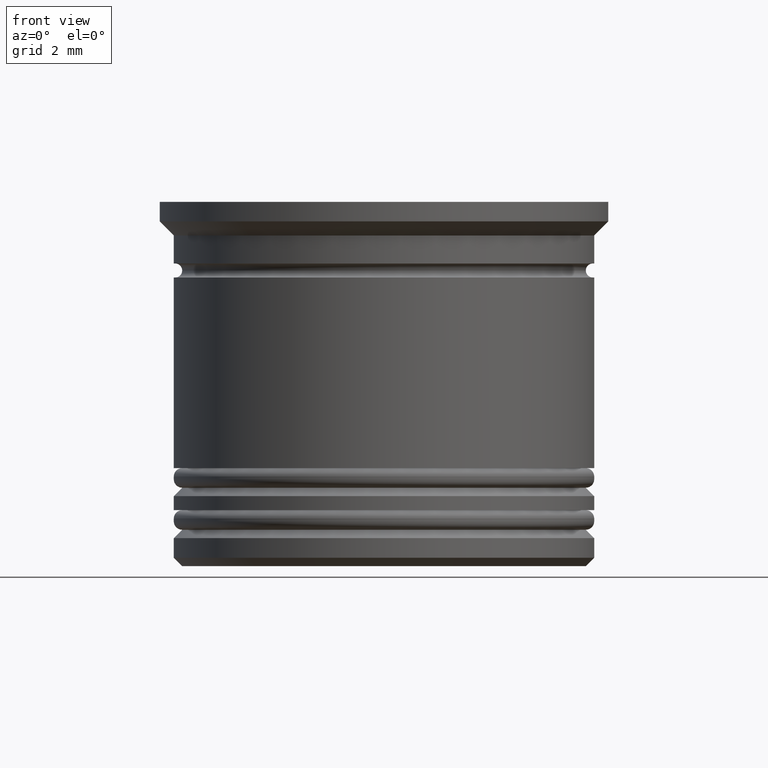
[diagram: clean part render]
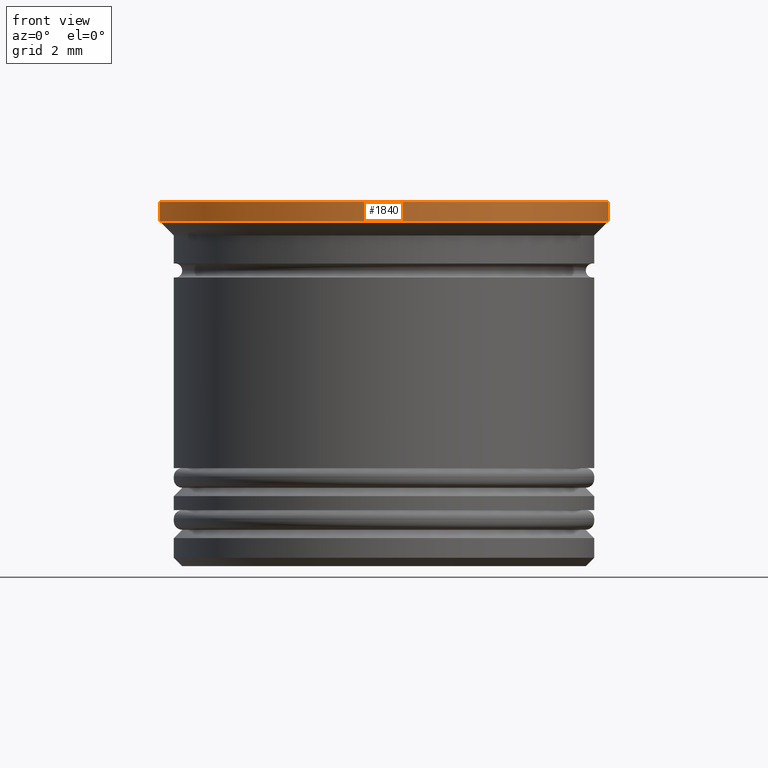
[diagram: same view with one face highlighted and labeled with its STEP entity id]
A machine part, front view. The second image highlights one B-rep face of the part: STEP entity #1840.
In plain terms, the highlighted cylindrical surface (partial cylindrical patch) has radius 8 mm, axis along (-0, -0, 1).
Its self-contained STEP definition (entity closure, byte-faithful):
#2 = DIRECTION ( 'NONE',  ( -0.000000000000000000, -0.000000000000000000, 1.000000000000000000 ) ) ;
#10 = VERTEX_POINT ( 'NONE', #871 ) ;
#71 = ORIENTED_EDGE ( 'NONE', *, *, #390, .F. ) ;
#114 = VECTOR ( 'NONE', #981, 1000.000000000000000 ) ;
#127 = FACE_OUTER_BOUND ( 'NONE', #615, .T. ) ;
#156 = CARTESIAN_POINT ( 'NONE',  ( 0.000000000000000000, 0.000000000000000000, -0.7000000000000005107 ) ) ;
#238 = CARTESIAN_POINT ( 'NONE',  ( 8.000000000000000000, 0.000000000000000000, 0.000000000000000000 ) ) ;
#250 = AXIS2_PLACEMENT_3D ( 'NONE', #601, #2, #1548 ) ;
#341 = CARTESIAN_POINT ( 'NONE',  ( -8.000000000000000000, 9.797174393178825657E-16, -0.7000000000000005107 ) ) ;
#390 = EDGE_CURVE ( 'NONE', #1803, #794, #1578, .T. ) ;
#528 = DIRECTION ( 'NONE',  ( -0.000000000000000000, -0.000000000000000000, 1.000000000000000000 ) ) ;
#592 = CARTESIAN_POINT ( 'NONE',  ( -8.000000000000000000, 9.797174393178825657E-16, 0.000000000000000000 ) ) ;
#594 = DIRECTION ( 'NONE',  ( -1.000000000000000000, 0.000000000000000000, 0.000000000000000000 ) ) ;
#601 = CARTESIAN_POINT ( 'NONE',  ( 0.000000000000000000, 0.000000000000000000, 0.000000000000000000 ) ) ;
#612 = DIRECTION ( 'NONE',  ( -0.000000000000000000, -0.000000000000000000, 1.000000000000000000 ) ) ;
#615 = EDGE_LOOP ( 'NONE', ( #1118, #1785, #1437, #71 ) ) ;
#700 = EDGE_CURVE ( 'NONE', #758, #1803, #825, .T. ) ;
#707 = AXIS2_PLACEMENT_3D ( 'NONE', #156, #612, #594 ) ;
#756 = CYLINDRICAL_SURFACE ( 'NONE', #250, 8.000000000000000000 ) ;
#758 = VERTEX_POINT ( 'NONE', #341 ) ;
#790 = CARTESIAN_POINT ( 'NONE',  ( 0.000000000000000000, 0.000000000000000000, 0.000000000000000000 ) ) ;
#794 = VERTEX_POINT ( 'NONE', #238 ) ;
#825 = LINE ( 'NONE', #1438, #114 ) ;
#831 = CARTESIAN_POINT ( 'NONE',  ( 8.000000000000000000, 0.000000000000000000, 0.000000000000000000 ) ) ;
#871 = CARTESIAN_POINT ( 'NONE',  ( 8.000000000000000000, 0.000000000000000000, -0.7000000000000005107 ) ) ;
#981 = DIRECTION ( 'NONE',  ( -0.000000000000000000, -0.000000000000000000, 1.000000000000000000 ) ) ;
#1046 = EDGE_CURVE ( 'NONE', #10, #794, #1134, .T. ) ;
#1118 = ORIENTED_EDGE ( 'NONE', *, *, #700, .F. ) ;
#1134 = LINE ( 'NONE', #831, #1324 ) ;
#1275 = DIRECTION ( 'NONE',  ( -0.000000000000000000, -0.000000000000000000, 1.000000000000000000 ) ) ;
#1324 = VECTOR ( 'NONE', #528, 1000.000000000000000 ) ;
#1437 = ORIENTED_EDGE ( 'NONE', *, *, #1046, .T. ) ;
#1438 = CARTESIAN_POINT ( 'NONE',  ( -8.000000000000000000, 9.797174393178825657E-16, 0.000000000000000000 ) ) ;
#1548 = DIRECTION ( 'NONE',  ( 1.000000000000000000, 0.000000000000000000, 0.000000000000000000 ) ) ;
#1577 = EDGE_CURVE ( 'NONE', #758, #10, #1885, .T. ) ;
#1578 = CIRCLE ( 'NONE', #1959, 8.000000000000000000 ) ;
#1785 = ORIENTED_EDGE ( 'NONE', *, *, #1577, .T. ) ;
#1803 = VERTEX_POINT ( 'NONE', #592 ) ;
#1840 = ADVANCED_FACE ( 'NONE', ( #127 ), #756, .T. ) ;
#1878 = DIRECTION ( 'NONE',  ( 1.000000000000000000, 0.000000000000000000, 0.000000000000000000 ) ) ;
#1885 = CIRCLE ( 'NONE', #707, 8.000000000000000000 ) ;
#1959 = AXIS2_PLACEMENT_3D ( 'NONE', #790, #1275, #1878 ) ;